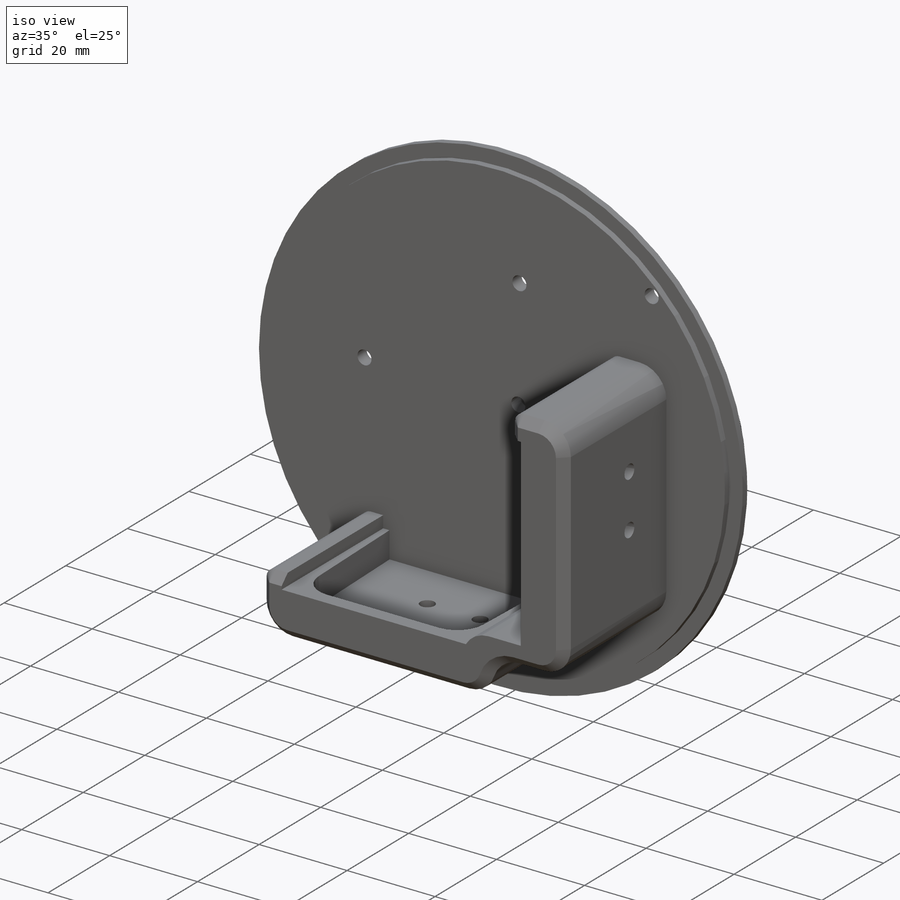
[diagram: iso view]
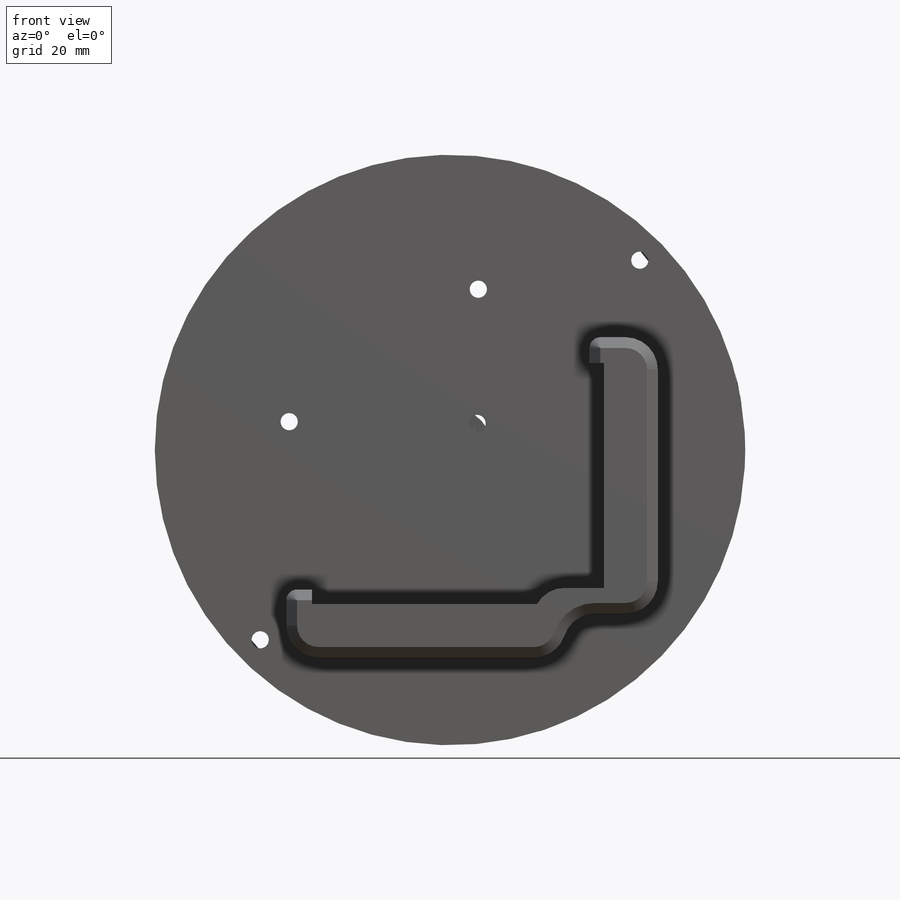
[diagram: front view]
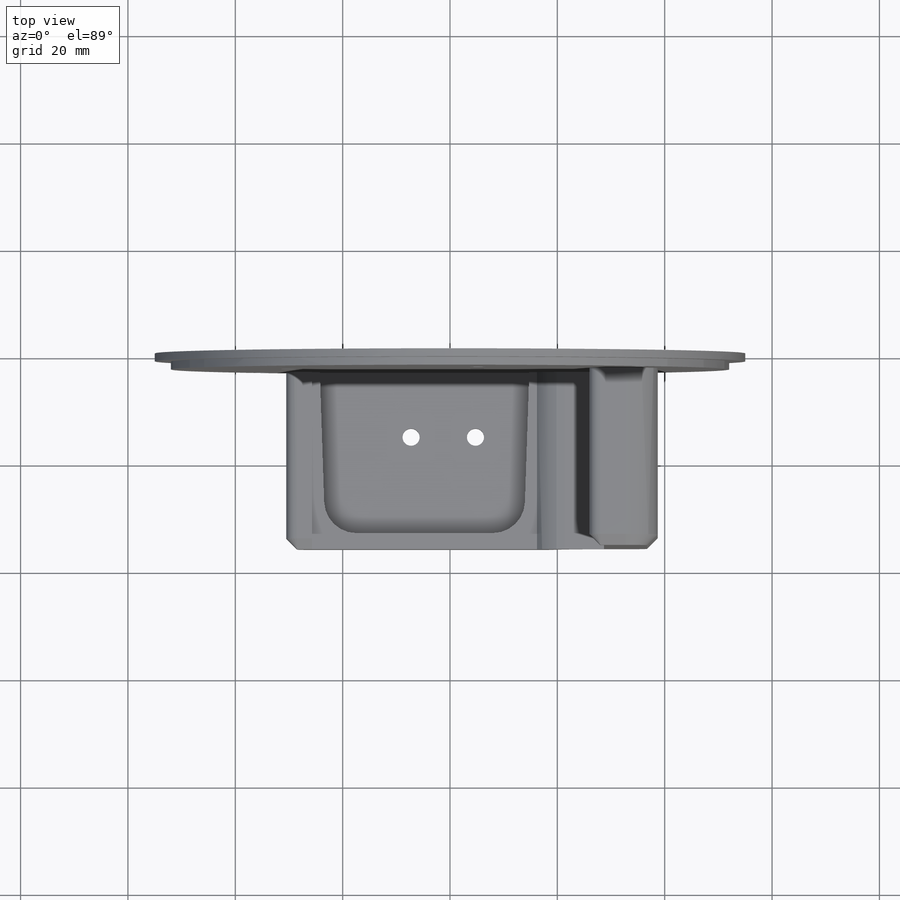
[diagram: top view]
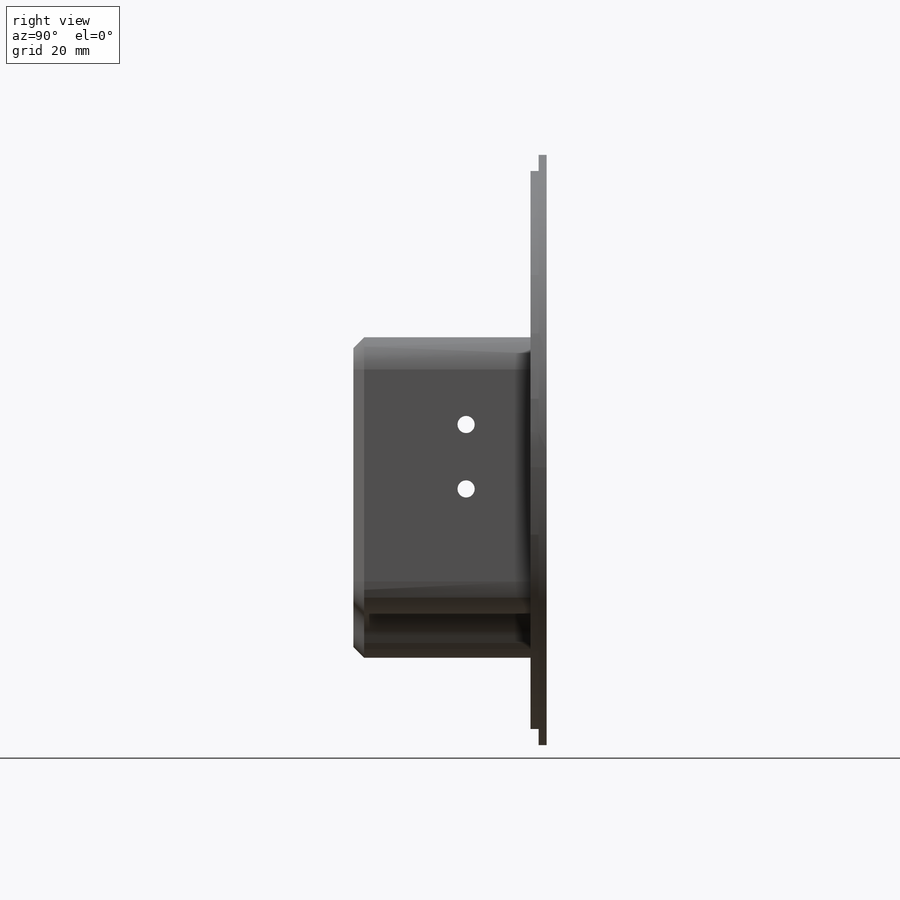
[diagram: right view]
SOLIDWORKS PART (.sldprt)
format: sldprt  version: not decoded by parser v0  size: 431,616 bytes
history: native  units: mm
features: sketch x9, cut_extrude x6, fillet x6, plane x3, extrude x3, material x1, chamfer x1 (+9 scaffold rows collapsed)
feature tree (38):
  scaffold x9  (default folders/planes/origin — collapsed)
  material  "ABS"
  plane  "Ebene vorne"
  plane  "Ebene oben"
  plane  "Ebene rechts"
  sketch  "Skizze1"  dims[c1.D1=110.0mm c1.D2=~102.009461mm c1.D5=6.0mm c1.D6=~1.052817mm c1.D3=6.0mm c1.D4=6.0mm c2.D6=6.0mm c2.D10=6.0mm c2.D12=~7.222396mm c3.D10=~7.139733mm c3.D7=6.0mm c3.D4=6.0mm c3.D2=3.0mm c3.D3=42.5mm c4.D4=66.5mm c4.D5=~18.673555mm c5.D4=60.5mm c5.D5=54.5mm c5.D7=58.0mm c5.D8=63.5mm c5.D9=83.5mm c5.D10=83.5mm c6.D4=55.0mm c6.D5=26.5mm c6.D7=61.5mm c6.D8=84.0mm c6.D9=26.5mm c6.D10=64.5mm c6.D11=62.5mm]
  extrude  "Aufsatz-Linear austragen1"  Depth=3mm
  extrude  "Aufsatz-Linear austragen2"  [1 undecoded]
  sketch  "Skizze1<3>"  dims[D1=1.5mm]
  sketch  "Skizze2"  dims[c1.D1=7.3mm c1.D2=1.5mm c1.D3=1.2mm c1.D4=39.5mm c1.D5=6.0mm c1.D6=1.2mm c1.D7=1.2mm c1.D8=7.3mm c2.D4=15.0mm c2.D8=19.75mm c2.D9=26.0mm c2.D10=10.0mm c2.D7=6.0mm c2.D2=5.4mm c2.D3=10.0mm c3.D2=0.3mm c3.D6=2.0]
  sketch  "Skizze3"  dims[D1=3.2mm D2=3.2mm D3=3.2mm]
  cut_extrude  "Schnitt-Linear austragen1"  [1 undecoded]
  extrude  "Aufsatz-Linear austragen3"  Depth=33mm
  sketch  "Skizze6"  dims[c1.D1=18.5mm c1.D2=30.0mm c1.D3=39.5mm c2.D1=19.5mm c2.D2=18.5mm c2.D3=30.0mm]
  cut_extrude  "Schnitt-Linear austragen4"  Depth=4mm
  fillet  "Verrundung1"  Radius=6mm
  sketch  "Skizze7"  dims[D1=18.5mm D2=19.5mm D3=30.0mm]
  cut_extrude  "Schnitt-Linear austragen9"  Depth=6mm
  fillet  "Verrundung2"  Radius=6mm
  fillet  "Verrundung4"  Radius=6mm
  fillet  "Verrundung5"  Radius=6mm
  fillet  "Verrundung6"  Radius=2mm
  sketch  "Skizze8"  dims[D1=3.2mm D2=3.2mm D3=12.0mm D4=12.0mm D5=23.25mm]
  sketch  "Skizze9"  dims[D1=3.2mm D2=3.2mm D3=12.0mm D4=23.25mm D5=12.0mm]
  cut_extrude  "Schnitt-Linear austragen10"  [1 undecoded]
  cut_extrude  "Schnitt-Linear austragen11"  [1 undecoded]
  fillet  "Verrundung7"  Radius=6mm
  sketch  "Skizze10"  dims[c1.D1=3.2mm c1.D2=50.0mm c1.D3=~45.110704mm c2.D3=45.0deg c2.D4=2.0]
  cut_extrude  "Schnitt-Linear austragen13"  [1 undecoded]
  chamfer  "Fase1"  Distance=2mm Angle=45deg
decode coverage: 20 of 25 modeling features carry decoded parameters
note: ~ marks probable driven/reference dimensions
note: 5 parameter values undecoded
summary: no parameter record found for 5 features
note: suppression state not decoded; provenance and decode notes live in map.json
